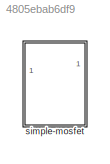
MODEL slx_4805ebab6df9
KIND library
CONFIG AbsTol = auto
CONFIG EnableMultiTasking = off
CONFIG FixedStep = auto
CONFIG MaxStep = auto
CONFIG MinStep = auto
CONFIG RelTol = 1e-3
CONFIG SampleTimeConstraint = Unconstrained
CONFIG SolverName = VariableStepAuto
CONFIG StartTime = 0.0
CONFIG StopTime = 10.0
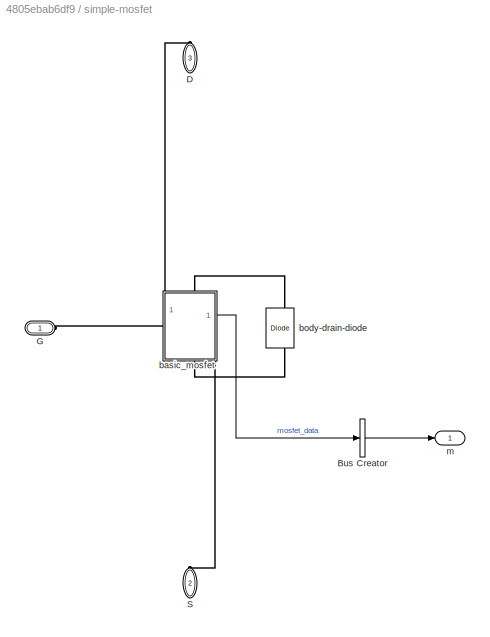
BLOCK [SubSystem] simple-mosfet
  PortSchema = {"entries":[{"content":{"sides":[{"content":{"connectorIds":["LConn1"]},"type":"ConnectorPlacement.EquallySpacedRectSide","uuid":"325dc963-858c-47f0-8995-f323ab4d9c46"},{"content":{"connectorIds":["Out1"],"side":"RIGHT"},"type":"ConnectorPlacement.EquallySpacedRectSide","uuid":"e9e66084-ecb2-40fb-9a1e-77677e0cc1df"},{"content":{"connectorIds":["LConn2"],"side":"TOP"},"type":"ConnectorPlacement.Equ...<+403ch>
BLOCK [BusCreator] simple-mosfet/Bus Creator
  DisplayOption = bar
  InheritFromInputs = on
  Inputs = 1
BLOCK [PMIOPort] simple-mosfet/D
  NameLocation = left
  Port = 3
  Side = Right
BLOCK [PMIOPort] simple-mosfet/G
  Side = Left
BLOCK [PMIOPort] simple-mosfet/S
  NameLocation = right
  Port = 2
  Side = Left
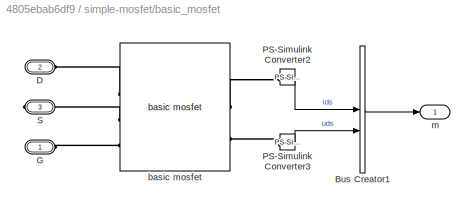
BLOCK [SubSystem] simple-mosfet/basic_mosfet
  PortSchema = {"entries":[{"content":{"sides":[{"content":{"connectorIds":["LConn1"]},"type":"ConnectorPlacement.EquallySpacedRectSide","uuid":"325dc963-858c-47f0-8995-f323ab4d9c46"},{"content":{"connectorIds":["Out1"],"side":"RIGHT"},"type":"ConnectorPlacement.EquallySpacedRectSide","uuid":"e9e66084-ecb2-40fb-9a1e-77677e0cc1df"},{"content":{"connectorIds":["LConn2"],"side":"TOP"},"type":"ConnectorPlacement.Equ...<+403ch>
BLOCK [BusCreator] simple-mosfet/basic_mosfet/Bus Creator1
  DisplayOption = bar
  InheritFromInputs = on
  Inputs = 2
BLOCK [PMIOPort] simple-mosfet/basic_mosfet/D
  Port = 2
  Side = Left
BLOCK [PMIOPort] simple-mosfet/basic_mosfet/G
  Side = Left
BLOCK [Reference] simple-mosfet/basic_mosfet/PS-Simulink Converter2  REF=nesl_utility/PS-Simulink
Converter
  SourceBlock = nesl_utility/PS-Simulink\nConverter
  SourceType = PS-Simulink\nConverter
BLOCK [Reference] simple-mosfet/basic_mosfet/PS-Simulink Converter3  REF=nesl_utility/PS-Simulink
Converter
  SourceBlock = nesl_utility/PS-Simulink\nConverter
  SourceType = PS-Simulink\nConverter
BLOCK [PMIOPort] simple-mosfet/basic_mosfet/S
  Port = 3
  Side = Right
BLOCK [Reference] simple-mosfet/basic_mosfet/basic mosfet  REF=basic_mosfet_lib/basic mosfet
  SourceBlock = basic_mosfet_lib/basic mosfet
  SourceType = basic mosfet
BLOCK [Outport] simple-mosfet/basic_mosfet/m
BLOCK [Reference] simple-mosfet/body-drain-diode  REF=fl_lib/Electrical/Electrical Elements/Diode
  NameLocation = right
  SourceBlock = fl_lib/Electrical/Electrical Elements/Diode
  SourceType = Diode
BLOCK [Outport] simple-mosfet/m
LINE simple-mosfet/Bus Creator:1 -> simple-mosfet/m:1
LINE simple-mosfet/basic_mosfet/Bus Creator1:1 -> simple-mosfet/basic_mosfet/m:1
LINE simple-mosfet/basic_mosfet/PS-Simulink Converter2:1 -> simple-mosfet/basic_mosfet/Bus Creator1:1
LINE simple-mosfet/basic_mosfet/PS-Simulink Converter3:1 -> simple-mosfet/basic_mosfet/Bus Creator1:2
LINE simple-mosfet/basic_mosfet:1 -> simple-mosfet/Bus Creator:1
PNET net1: simple-mosfet/D:RConn1 -- simple-mosfet/basic_mosfet:LConn2 -- simple-mosfet/body-drain-diode:RConn1
PLINE simple-mosfet/G:RConn1 -- simple-mosfet/basic_mosfet:LConn1
PNET net2: simple-mosfet/S:RConn1 -- simple-mosfet/basic_mosfet:RConn1 -- simple-mosfet/body-drain-diode:LConn1
PLINE simple-mosfet/basic_mosfet/D:RConn1 -- simple-mosfet/basic_mosfet/basic mosfet:LConn1
PLINE simple-mosfet/basic_mosfet/G:RConn1 -- simple-mosfet/basic_mosfet/basic mosfet:LConn3
PLINE simple-mosfet/basic_mosfet/PS-Simulink Converter2:LConn1 -- simple-mosfet/basic_mosfet/basic mosfet:RConn1
PLINE simple-mosfet/basic_mosfet/PS-Simulink Converter3:LConn1 -- simple-mosfet/basic_mosfet/basic mosfet:RConn2
PLINE simple-mosfet/basic_mosfet/S:RConn1 -- simple-mosfet/basic_mosfet/basic mosfet:LConn2
note: PNET lines group multi-terminal physical nets as a canonical sorted terminal list (undirected conserving connections); 2-terminal nets keep the pairwise PLINE form
